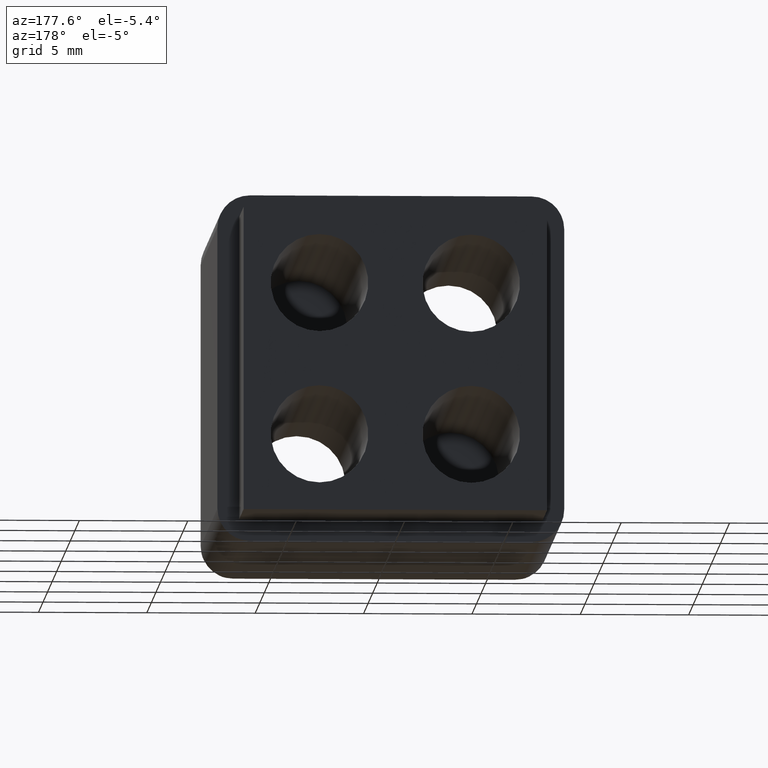
[diagram: clean part render]
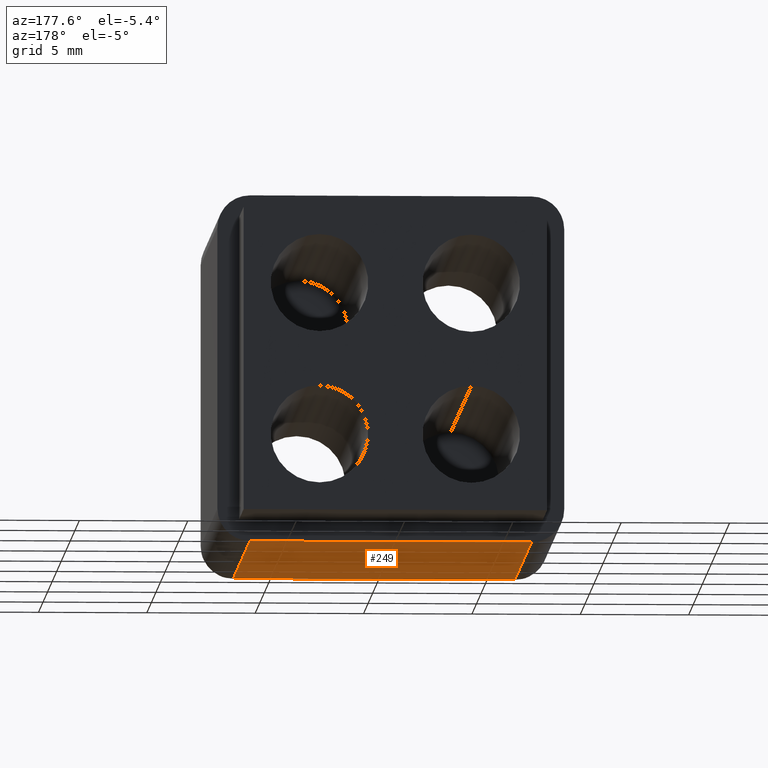
[diagram: same view with one face highlighted and labeled with its STEP entity id]
A machine part, auxiliary view. The second image highlights one B-rep face of the part: STEP entity #249.
In plain terms, the highlighted planar face has unit normal (0, 0, 1).
Its self-contained STEP definition (entity closure, byte-faithful):
#210=CARTESIAN_POINT('',(-7.150000000000006,0.574999999999999,-8.000000000000004));
#211=DIRECTION('',(0.0,0.0,1.0));
#212=DIRECTION('',(1.0,0.0,0.0));
#213=AXIS2_PLACEMENT_3D('',#210,#211,#212);
#214=PLANE('',#213);
#215=CARTESIAN_POINT('',(6.500000000000003,20.0,-8.000000000000004));
#216=VERTEX_POINT('',#215);
#217=CARTESIAN_POINT('',(-6.500000000000003,20.0,-8.000000000000004));
#218=VERTEX_POINT('',#217);
#219=CARTESIAN_POINT('',(6.500000000000004,20.0,-8.000000000000004));
#220=DIRECTION('',(-1.0,0.0,0.0));
#221=VECTOR('',#220,13.000000000000009);
#222=LINE('',#219,#221);
#223=EDGE_CURVE('',#216,#218,#222,.T.);
#224=ORIENTED_EDGE('',*,*,#223,.F.);
#225=CARTESIAN_POINT('',(6.500000000000003,1.500000000000001,-8.000000000000004));
#226=VERTEX_POINT('',#225);
#227=CARTESIAN_POINT('',(6.500000000000003,20.0,-8.000000000000004));
#228=DIRECTION('',(0.0,-1.0,0.0));
#229=VECTOR('',#228,18.500000000000000);
#230=LINE('',#227,#229);
#231=EDGE_CURVE('',#216,#226,#230,.T.);
#232=ORIENTED_EDGE('',*,*,#231,.T.);
#233=CARTESIAN_POINT('',(-6.500000000000003,1.500000000000001,-8.000000000000004));
#234=VERTEX_POINT('',#233);
#235=CARTESIAN_POINT('',(6.500000000000004,1.500000000000001,-8.000000000000004));
#236=DIRECTION('',(-1.0,0.0,0.0));
#237=VECTOR('',#236,13.000000000000009);
#238=LINE('',#235,#237);
#239=EDGE_CURVE('',#226,#234,#238,.T.);
#240=ORIENTED_EDGE('',*,*,#239,.T.);
#241=CARTESIAN_POINT('',(-6.500000000000003,1.500000000000000,-8.000000000000004));
#242=DIRECTION('',(0.0,1.0,0.0));
#243=VECTOR('',#242,18.500000000000000);
#244=LINE('',#241,#243);
#245=EDGE_CURVE('',#234,#218,#244,.T.);
#246=ORIENTED_EDGE('',*,*,#245,.T.);
#247=EDGE_LOOP('',(#224,#232,#240,#246));
#248=FACE_OUTER_BOUND('',#247,.T.);
#249=ADVANCED_FACE('',(#248),#214,.F.);